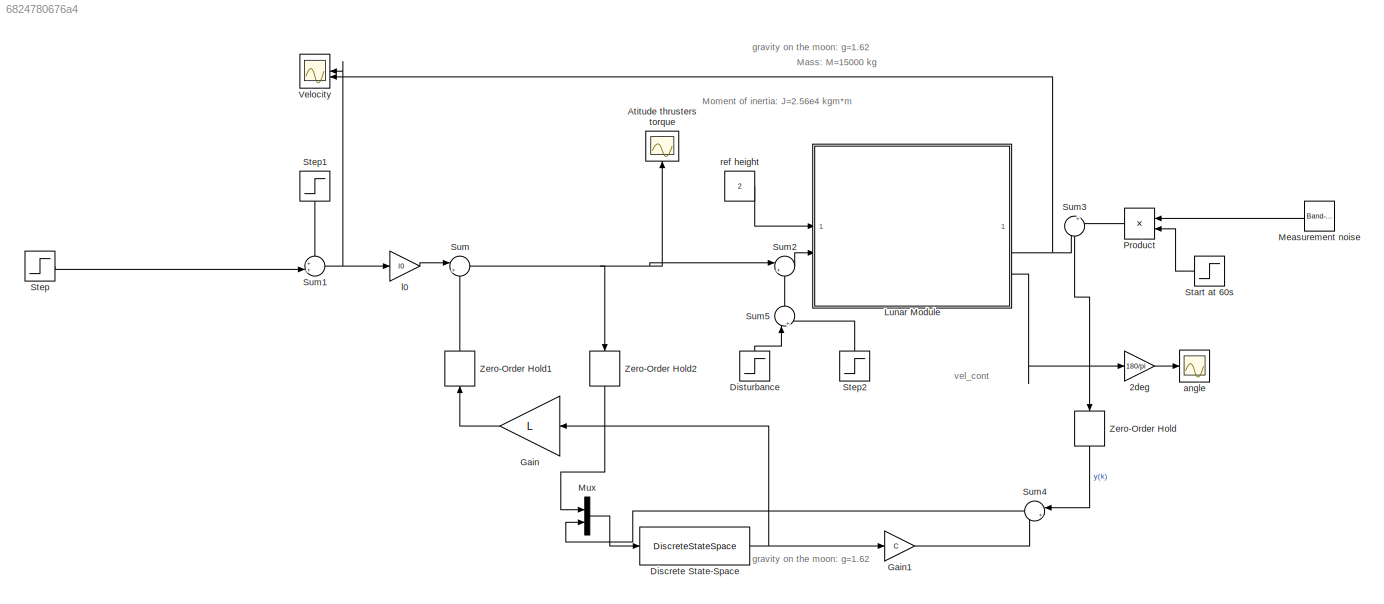
MODEL slx_6824780676a4
KIND model
CONFIG AbsTol = auto
CONFIG EnableMultiTasking = off
CONFIG FixedStep = auto
CONFIG MaxStep = 0.01
CONFIG MinStep = auto
CONFIG RelTol = 1e-3
CONFIG SampleTimeConstraint = Unconstrained
CONFIG SolverName = VariableStepAuto
CONFIG StartTime = 0.0
CONFIG StopTime = 100
BLOCK [Gain] 2deg
  Gain = 180/pi
BLOCK [Scope] Atitude thrusters torque
  Floating = off
  NameLocation = right
  NumInputPorts = 2
  ScopeSpecificationString = Simulink.scopes.TimeScopeBlockCfg('CurrentConfiguration', extmgr.ConfigurationSet(extmgr.Configuration('Core','General UI',true),extmgr.Configuration('Core','Source UI',true),extmgr.Configuration('Sources','WiredSimulink',true,'DataLoggingVariableName','ScopeData1'),extmgr.Configuration('Visuals','Time Domain',true,'SerializedDisplays',{struct('MinYLimReal','-2678212.59919','MaxYLimReal','2437295....<+1732ch>
BLOCK [DiscreteStateSpace] Discrete State-Space
  A = A
  B = [B K10]
  C = eye(3)
  D = zeros(3, 2)
  SampleTime = -1
BLOCK [Step] Disturbance
  After = -1e3
  NameLocation = right
  SampleTime = 0
  Time = 40
BLOCK [Gain] Gain
  Gain = L
  Multiplication = Matrix(K*u) (u vector)
  NameLocation = top
BLOCK [Gain] Gain1
  Gain = C
  Multiplication = Matrix(K*u)
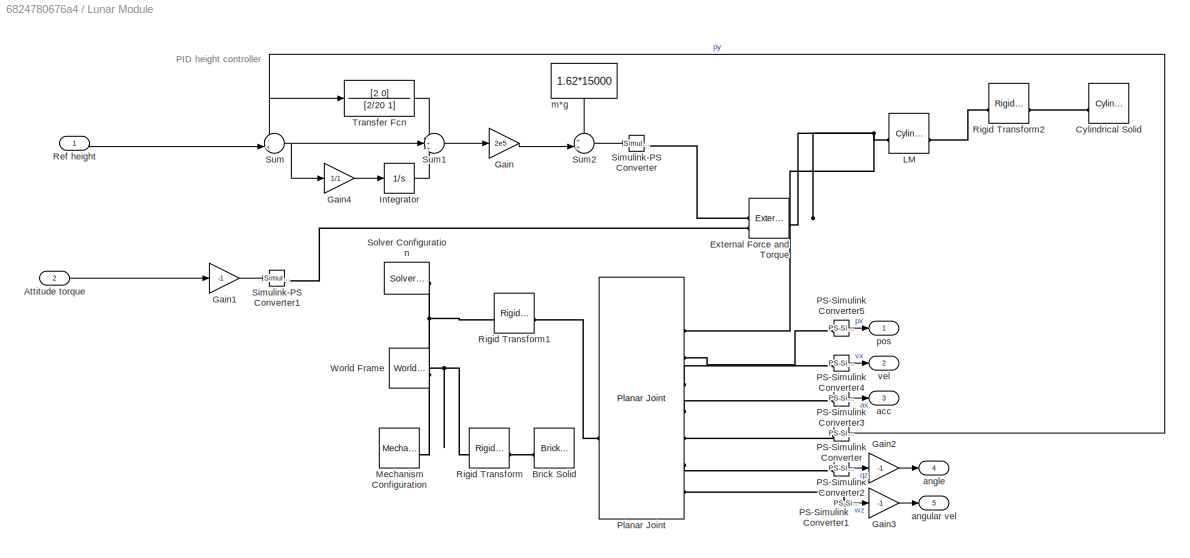
BLOCK [SubSystem] Lunar Module
BLOCK [Inport] Lunar Module/Attitude torque
  Port = 2
BLOCK [Reference] Lunar Module/Brick Solid  REF=sm_lib/Body Elements/Brick Solid
  NameLocation = top
  SourceBlock = sm_lib/Body Elements/Brick Solid
  SourceType = Brick Solid
BLOCK [Reference] Lunar Module/Cylindrical Solid  REF=sm_lib/Body Elements/Cylindrical Solid
  NameLocation = top
  SourceBlock = sm_lib/Body Elements/Cylindrical Solid
  SourceType = Cylindrical Solid
BLOCK [Reference] Lunar Module/External Force and Torque  REF=sm_lib/Forces and
Torques/External Force
and Torque
  SourceBlock = sm_lib/Forces and\nTorques/External Force\nand Torque
  SourceType = External Force\nand Torque
BLOCK [Gain] Lunar Module/Gain
  Gain = 2e5
BLOCK [Gain] Lunar Module/Gain1
  Gain = -1
BLOCK [Gain] Lunar Module/Gain2
  Gain = -1
BLOCK [Gain] Lunar Module/Gain3
  Gain = -1
BLOCK [Gain] Lunar Module/Gain4
  Gain = 1/1
BLOCK [Integrator] Lunar Module/Integrator
BLOCK [Reference] Lunar Module/LM  REF=sm_lib/Body Elements/Cylindrical Solid
  SourceBlock = sm_lib/Body Elements/Cylindrical Solid
  SourceType = Cylindrical Solid
BLOCK [Reference] Lunar Module/Mechanism Configuration  REF=sm_lib/Utilities/Mechanism
Configuration
  SourceBlock = sm_lib/Utilities/Mechanism\nConfiguration
  SourceType = Mechanism\nConfiguration
BLOCK [Reference] Lunar Module/PS-Simulink Converter  REF=nesl_utility/PS-Simulink
Converter
  SourceBlock = nesl_utility/PS-Simulink\nConverter
  SourceType = PS-Simulink\nConverter
BLOCK [Reference] Lunar Module/PS-Simulink Converter1  REF=nesl_utility/PS-Simulink
Converter
  SourceBlock = nesl_utility/PS-Simulink\nConverter
  SourceType = PS-Simulink\nConverter
BLOCK [Reference] Lunar Module/PS-Simulink Converter2  REF=nesl_utility/PS-Simulink
Converter
  SourceBlock = nesl_utility/PS-Simulink\nConverter
  SourceType = PS-Simulink\nConverter
BLOCK [Reference] Lunar Module/PS-Simulink Converter3  REF=nesl_utility/PS-Simulink
Converter
  SourceBlock = nesl_utility/PS-Simulink\nConverter
  SourceType = PS-Simulink\nConverter
BLOCK [Reference] Lunar Module/PS-Simulink Converter4  REF=nesl_utility/PS-Simulink
Converter
  SourceBlock = nesl_utility/PS-Simulink\nConverter
  SourceType = PS-Simulink\nConverter
BLOCK [Reference] Lunar Module/PS-Simulink Converter5  REF=nesl_utility/PS-Simulink
Converter
  SourceBlock = nesl_utility/PS-Simulink\nConverter
  SourceType = PS-Simulink\nConverter
BLOCK [Reference] Lunar Module/Planar Joint  REF=sm_lib/Joints/Planar Joint
  SourceBlock = sm_lib/Joints/Planar Joint
  SourceType = Planar Joint
BLOCK [Inport] Lunar Module/Ref height
BLOCK [Reference] Lunar Module/Rigid Transform  REF=sm_lib/Frames and
Transforms/Rigid
Transform
  SourceBlock = sm_lib/Frames and\nTransforms/Rigid\nTransform
  SourceType = Rigid\nTransform
BLOCK [Reference] Lunar Module/Rigid Transform1  REF=sm_lib/Frames and
Transforms/Rigid
Transform
  SourceBlock = sm_lib/Frames and\nTransforms/Rigid\nTransform
  SourceType = Rigid\nTransform
BLOCK [Reference] Lunar Module/Rigid Transform2  REF=sm_lib/Frames and
Transforms/Rigid
Transform
  SourceBlock = sm_lib/Frames and\nTransforms/Rigid\nTransform
  SourceType = Rigid\nTransform
BLOCK [Reference] Lunar Module/Simulink-PS Converter  REF=nesl_utility/Simulink-PS
Converter
  SourceBlock = nesl_utility/Simulink-PS\nConverter
  SourceType = Simulink-PS\nConverter
BLOCK [Reference] Lunar Module/Simulink-PS Converter1  REF=nesl_utility/Simulink-PS
Converter
  SourceBlock = nesl_utility/Simulink-PS\nConverter
  SourceType = Simulink-PS\nConverter
BLOCK [Reference] Lunar Module/Solver Configuration  REF=nesl_utility/Solver
Configuration
  SourceBlock = nesl_utility/Solver\nConfiguration
  SourceType = Solver\nConfiguration
BLOCK [Sum] Lunar Module/Sum
  Inputs = -+|
BLOCK [Sum] Lunar Module/Sum1
  Inputs = -++
BLOCK [Sum] Lunar Module/Sum2
  Inputs = ++|
BLOCK [TransferFcn] Lunar Module/Transfer Fcn
  Denominator = [2/20 1]
  Numerator = [2 0]
BLOCK [Reference] Lunar Module/World Frame  REF=sm_lib/Frames and
Transforms/World Frame
  SourceBlock = sm_lib/Frames and\nTransforms/World Frame
  SourceType = World Frame
BLOCK [Outport] Lunar Module/acc
  Port = 3
BLOCK [Outport] Lunar Module/angle
  Port = 4
BLOCK [Outport] Lunar Module/angular vel
  Port = 5
BLOCK [Constant] Lunar Module/m*g
  NameLocation = left
  Value = 1.62*15000
BLOCK [Outport] Lunar Module/pos
BLOCK [Outport] Lunar Module/vel
  Port = 2
BLOCK [Reference] Measurement noise  REF=simulink/Sources/Band-Limited
White Noise
  NameLocation = top
  SourceBlock = simulink/Sources/Band-Limited\nWhite Noise
  SourceType = Band-Limited White Noise.
BLOCK [Mux] Mux
  DisplayOption = bar
  Inputs = 2
BLOCK [Product] Product
  NameLocation = top
BLOCK [Step] Start at 60s
  NameLocation = top
  SampleTime = 0
  Time = 60
BLOCK [Step] Step
  After = 2
  SampleTime = 0
  Time = 6
BLOCK [Step] Step1
  After = -2
  NameLocation = left
  SampleTime = 0
  Time = 20.4
BLOCK [Step] Step2
  After = 1e3
  NameLocation = right
  SampleTime = 0
  Time = 50
BLOCK [Sum] Sum
  Inputs = |+-
BLOCK [Sum] Sum1
  Inputs = ++|
BLOCK [Sum] Sum2
  Inputs = |++
BLOCK [Sum] Sum3
  Inputs = |++
  NameLocation = left
BLOCK [Sum] Sum4
  Inputs = |+-
  NameLocation = top
BLOCK [Sum] Sum5
  Inputs = |++
  NameLocation = right
BLOCK [Scope] Velocity
  Floating = off
  NameLocation = top
  NumInputPorts = 3
  ScopeSpecificationString = Simulink.scopes.TimeScopeBlockCfg('CurrentConfiguration', extmgr.ConfigurationSet(extmgr.Configuration('Core','General UI',true),extmgr.Configuration('Core','Source UI',true),extmgr.Configuration('Sources','WiredSimulink',true),extmgr.Configuration('Visuals','Time Domain',true,'SerializedDisplays',{struct('MinYLimReal','-3.3044','MaxYLimReal','2.60999','YLabelReal','','MinYLimMag','0.00000','MaxYL...<+2120ch>
BLOCK [ZeroOrderHold] Zero-Order Hold
  NameLocation = left
  SampleTime = h
BLOCK [ZeroOrderHold] Zero-Order Hold1
  NameLocation = right
  SampleTime = h
BLOCK [ZeroOrderHold] Zero-Order Hold2
  NameLocation = left
  SampleTime = h
BLOCK [Scope] angle
  Floating = off
  NumInputPorts = 1
  ScopeSpecificationString = Simulink.scopes.TimeScopeBlockCfg('CurrentConfiguration', extmgr.ConfigurationSet(extmgr.Configuration('Core','General UI',true),extmgr.Configuration('Core','Source UI',true),extmgr.Configuration('Sources','WiredSimulink',true,'DataLoggingVariableName','ScopeData2'),extmgr.Configuration('Visuals','Time Domain',true,'SerializedDisplays',{struct('MinYLimReal','-43.89822','MaxYLimReal','41.90549','YL...<+1450ch>
BLOCK [Gain] l0
  Gain = l0
BLOCK [Constant] ref height
  Value = 2
ANNOTATION (root): vel_cont
ANNOTATION (root): Mass: M=15000 kg
ANNOTATION (root): Moment of inertia: J=2.56e4 kgm*m
ANNOTATION (root): gravity on the moon: g=1.62
ANNOTATION Lunar Module: PID height controller
LINE 2deg:1 -> angle:1
NET Discrete State-Space:1 -> Gain1:1, Gain:1
LINE Disturbance:1 -> Sum5:1
LINE Gain1:1 -> Sum4:2
LINE Gain:1 -> Zero-Order Hold1:1
LINE Lunar Module/Attitude torque:1 -> Lunar Module/Gain1:1
LINE Lunar Module/Gain1:1 -> Lunar Module/Simulink-PS Converter1:1
LINE Lunar Module/Gain2:1 -> Lunar Module/angle:1
LINE Lunar Module/Gain3:1 -> Lunar Module/angular vel:1
LINE Lunar Module/Gain4:1 -> Lunar Module/Integrator:1
LINE Lunar Module/Gain:1 -> Lunar Module/Sum2:2
LINE Lunar Module/Integrator:1 -> Lunar Module/Sum1:3
LINE Lunar Module/PS-Simulink Converter1:1 -> Lunar Module/Gain3:1
LINE Lunar Module/PS-Simulink Converter2:1 -> Lunar Module/Gain2:1
LINE Lunar Module/PS-Simulink Converter3:1 -> Lunar Module/acc:1
LINE Lunar Module/PS-Simulink Converter4:1 -> Lunar Module/vel:1
LINE Lunar Module/PS-Simulink Converter5:1 -> Lunar Module/pos:1
NET Lunar Module/PS-Simulink Converter:1 -> Lunar Module/Sum:1, Lunar Module/Transfer Fcn:1
LINE Lunar Module/Ref height:1 -> Lunar Module/Sum:2
LINE Lunar Module/Sum1:1 -> Lunar Module/Gain:1
LINE Lunar Module/Sum2:1 -> Lunar Module/Simulink-PS Converter:1
NET Lunar Module/Sum:1 -> Lunar Module/Gain4:1, Lunar Module/Sum1:2
LINE Lunar Module/Transfer Fcn:1 -> Lunar Module/Sum1:1
LINE Lunar Module/m*g:1 -> Lunar Module/Sum2:1
NET Lunar Module:2 -> Sum3:1, Velocity:2
LINE Lunar Module:4 -> 2deg:1
LINE Measurement noise:1 -> Product:1
LINE Mux:1 -> Discrete State-Space:1
LINE Product:1 -> Sum3:2
LINE Start at 60s:1 -> Product:2
LINE Step1:1 -> Sum1:1
LINE Step2:1 -> Sum5:2
LINE Step:1 -> Sum1:2
NET Sum1:1 -> Velocity:1, l0:1
LINE Sum2:1 -> Lunar Module:2
LINE Sum3:1 -> Zero-Order Hold:1
LINE Sum4:1 -> Mux:2
LINE Sum5:1 -> Sum2:2
NET Sum:1 -> Atitude thrusters torque:1, Sum2:1, Zero-Order Hold2:1
LINE Zero-Order Hold1:1 -> Sum:2
LINE Zero-Order Hold2:1 -> Mux:1
LINE Zero-Order Hold:1 -> Sum4:1
LINE l0:1 -> Sum:1
LINE ref height:1 -> Lunar Module:1
PLINE Lunar Module/Brick Solid:RConn1 -- Lunar Module/Rigid Transform:RConn1
PLINE Lunar Module/Cylindrical Solid:RConn1 -- Lunar Module/Rigid Transform2:RConn1
PLINE Lunar Module/External Force and Torque:LConn1 -- Lunar Module/Simulink-PS Converter:RConn1
PLINE Lunar Module/External Force and Torque:LConn2 -- Lunar Module/Simulink-PS Converter1:RConn1
PNET net1: Lunar Module/External Force and Torque:RConn1 -- Lunar Module/LM:LConn1 -- Lunar Module/Planar Joint:RConn1
PLINE Lunar Module/LM:RConn1 -- Lunar Module/Rigid Transform2:LConn1
PNET net2: Lunar Module/Mechanism Configuration:RConn1 -- Lunar Module/Rigid Transform1:LConn1 -- Lunar Module/Rigid Transform:LConn1 -- Lunar Module/Solver Configuration:RConn1 -- Lunar Module/World Frame:RConn1
PLINE Lunar Module/PS-Simulink Converter1:LConn1 -- Lunar Module/Planar Joint:RConn7
PLINE Lunar Module/PS-Simulink Converter2:LConn1 -- Lunar Module/Planar Joint:RConn6
PLINE Lunar Module/PS-Simulink Converter3:LConn1 -- Lunar Module/Planar Joint:RConn4
PLINE Lunar Module/PS-Simulink Converter4:LConn1 -- Lunar Module/Planar Joint:RConn3
PLINE Lunar Module/PS-Simulink Converter5:LConn1 -- Lunar Module/Planar Joint:RConn2
PLINE Lunar Module/PS-Simulink Converter:LConn1 -- Lunar Module/Planar Joint:RConn5
PLINE Lunar Module/Planar Joint:LConn1 -- Lunar Module/Rigid Transform1:RConn1
note: NET lines group one-source signal fan-out (src -> all destinations, sorted); 1:1 wires keep LINE; PNET lines group multi-terminal physical nets as a canonical sorted terminal list (undirected conserving connections); 2-terminal nets keep the pairwise PLINE form
